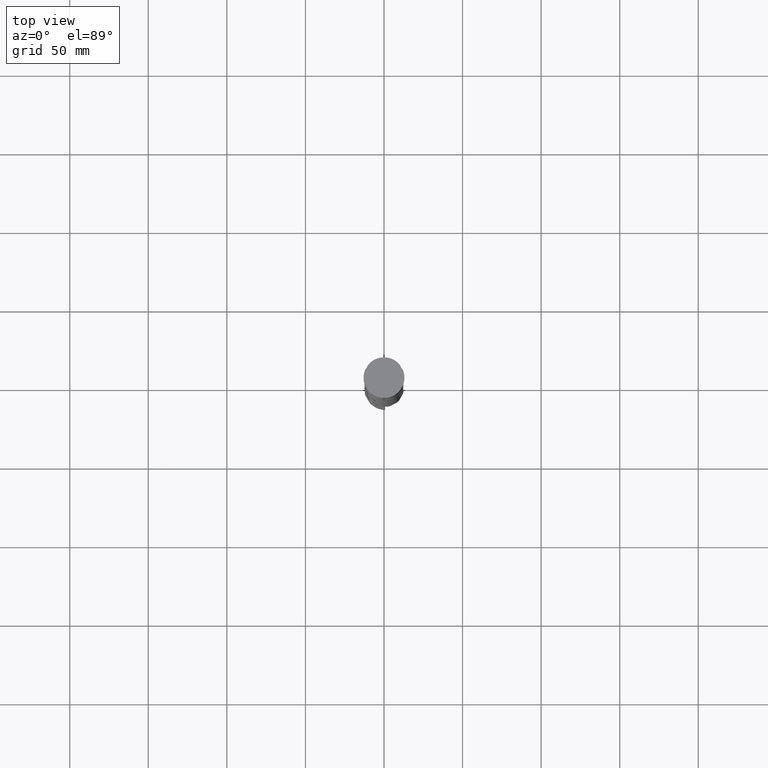
[diagram: clean part render]
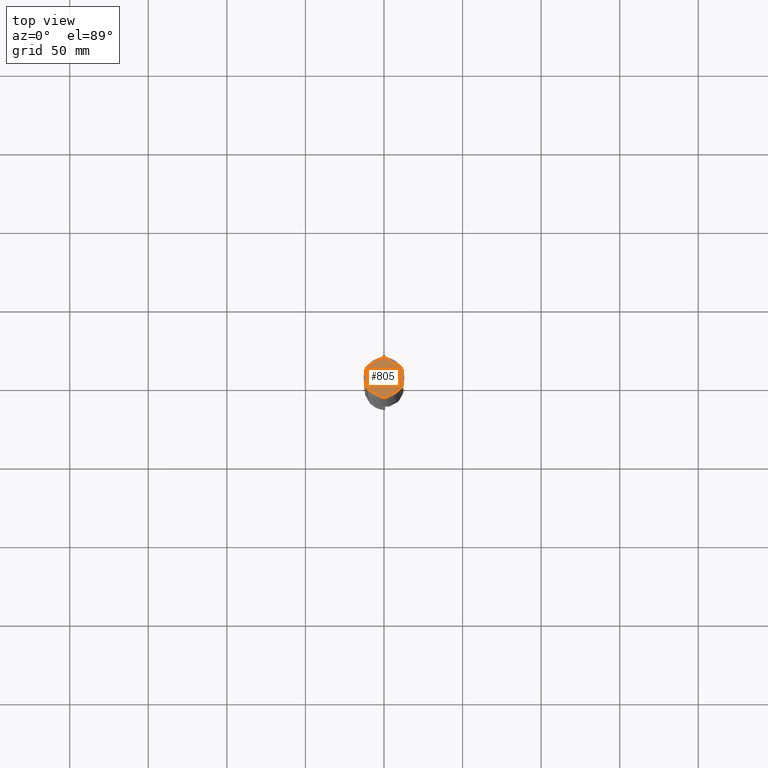
[diagram: same view with one face highlighted and labeled with its STEP entity id]
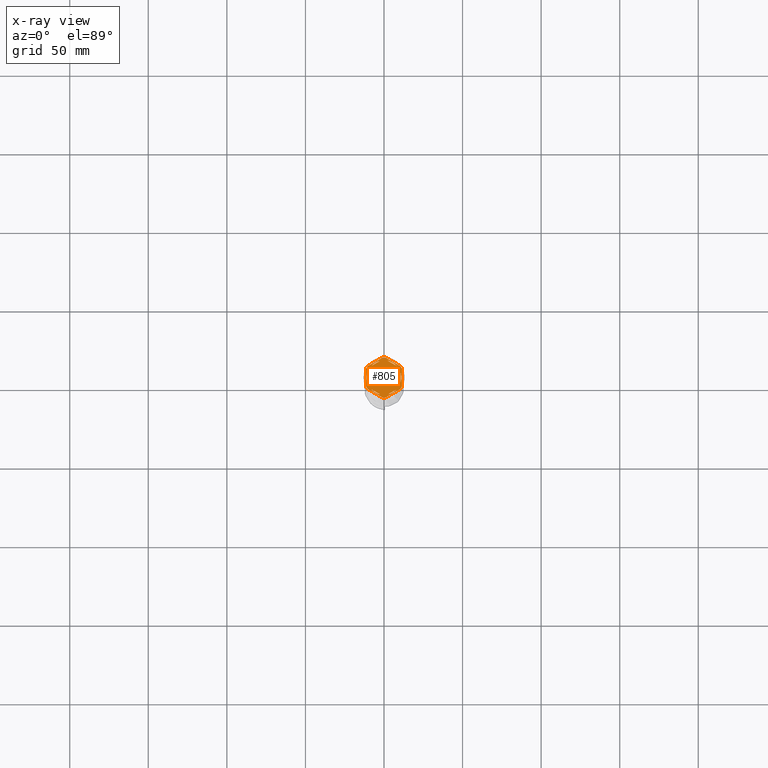
[diagram: x-ray of the same camera — body ghosted, the highlighted face saturated]
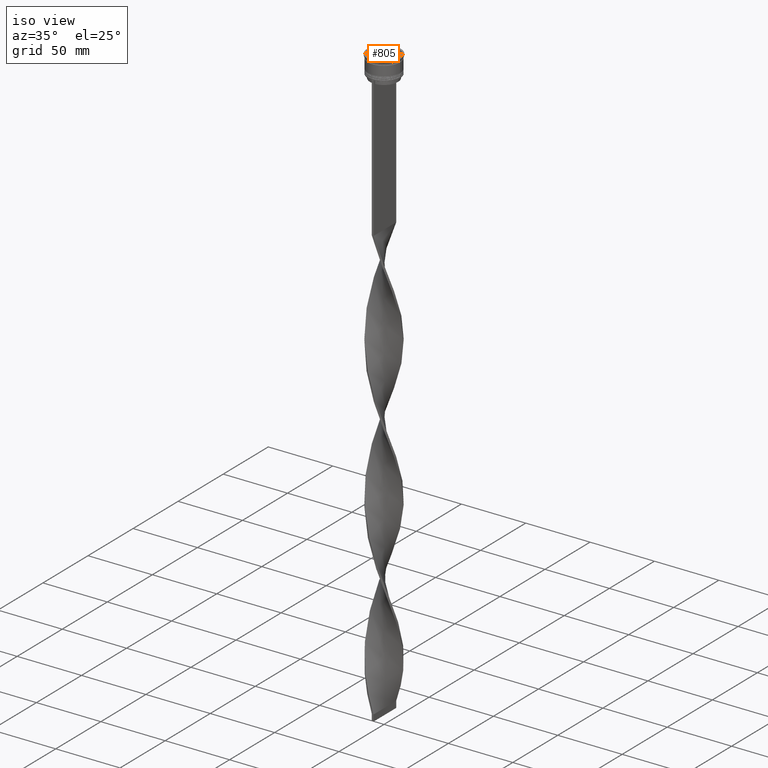
[diagram: same view with one face highlighted and labeled with its STEP entity id]
A machine part, top view. The second image highlights one B-rep face of the part: STEP entity #805.
The next image is the same camera in x-ray: the body ghosted, the highlighted face saturated — about 0% of this face is hidden behind the body in this view.
A second angle (iso view) of the same face is appended — the face is thin or edge-on in the first view.
In plain terms, the highlighted planar face has unit normal (0, 0, 1).
Its self-contained STEP definition (entity closure, byte-faithful):
#24 = EDGE_CURVE ( 'NONE', #4083, #1658, #3200, .T. ) ;
#26 = CARTESIAN_POINT ( 'NONE',  ( 0.000000000000000000, 0.000000000000000000, -1.000000000000000000 ) ) ;
#53 = CARTESIAN_POINT ( 'NONE',  ( -10.49999999999999822, 6.062177826491068622, -1.000000000000000888 ) ) ;
#54 = EDGE_CURVE ( 'NONE', #2521, #1767, #1988, .T. ) ;
#74 = ORIENTED_EDGE ( 'NONE', *, *, #3415, .F. ) ;
#78 = DIRECTION ( 'NONE',  ( 0.000000000000000000, 1.000000000000000000, 0.000000000000000000 ) ) ;
#88 = VERTEX_POINT ( 'NONE', #3792 ) ;
#120 = CARTESIAN_POINT ( 'NONE',  ( 8.089454172900138573, 7.453907108661105063, -1.000000000000000888 ) ) ;
#128 = CARTESIAN_POINT ( 'NONE',  ( 0.000000000000000000, 0.000000000000000000, -1.000000000000000000 ) ) ;
#172 = FACE_BOUND ( 'NONE', #1934, .T. ) ;
#197 = EDGE_CURVE ( 'NONE', #4226, #3407, #665, .T. ) ;
#239 = VECTOR ( 'NONE', #2642, 999.9999999999998863 ) ;
#267 = EDGE_CURVE ( 'NONE', #3195, #3350, #2463, .T. ) ;
#343 = CARTESIAN_POINT ( 'NONE',  ( 8.089454172900135021, -7.453907108661109504, -1.000000000000000888 ) ) ;
#366 = EDGE_CURVE ( 'NONE', #427, #4083, #755, .T. ) ;
#381 = VERTEX_POINT ( 'NONE', #3623 ) ;
#384 = AXIS2_PLACEMENT_3D ( 'NONE', #1116, #4031, #2297 ) ;
#386 = VERTEX_POINT ( 'NONE', #2085 ) ;
#427 = VERTEX_POINT ( 'NONE', #1514 ) ;
#481 = CARTESIAN_POINT ( 'NONE',  ( -2.602085213965210642E-15, -12.12435565298214080, -1.000000000000000888 ) ) ;
#547 = VERTEX_POINT ( 'NONE', #3430 ) ;
#611 = DIRECTION ( 'NONE',  ( -0.8660254037844385966, -0.5000000000000001110, 0.000000000000000000 ) ) ;
#632 = LINE ( 'NONE', #4181, #1423 ) ;
#645 = CARTESIAN_POINT ( 'NONE',  ( -10.41690475583121334, -7.264853426459548125, -1.000000000000000000 ) ) ;
#662 = ORIENTED_EDGE ( 'NONE', *, *, #2038, .F. ) ;
#665 = CIRCLE ( 'NONE', #1644, 12.69999999999999929 ) ;
#679 = CIRCLE ( 'NONE', #1732, 12.69999999999999929 ) ;
#691 = ORIENTED_EDGE ( 'NONE', *, *, #2238, .T. ) ;
#702 = DIRECTION ( 'NONE',  ( 1.000000000000000000, 0.000000000000000000, 0.000000000000000000 ) ) ;
#710 = EDGE_CURVE ( 'NONE', #88, #1713, #1956, .T. ) ;
#739 = CARTESIAN_POINT ( 'NONE',  ( 11.50000000000000000, 6.639528095680698350, -1.000000000000000000 ) ) ;
#745 = AXIS2_PLACEMENT_3D ( 'NONE', #3454, #3123, #1013 ) ;
#755 = LINE ( 'NONE', #53, #2096 ) ;
#767 = VERTEX_POINT ( 'NONE', #4398 ) ;
#789 = LINE ( 'NONE', #2873, #3531 ) ;
#805 = ADVANCED_FACE ( 'NONE', ( #3383, #172, #4117, #1931, #3739, #3355, #2333 ), #4231, .T. ) ;
#824 = VECTOR ( 'NONE', #2338, 1000.000000000000227 ) ;
#868 = DIRECTION ( 'NONE',  ( -0.000000000000000000, -0.000000000000000000, -1.000000000000000000 ) ) ;
#888 = CARTESIAN_POINT ( 'NONE',  ( 11.49999999999999822, 5.388877434122992582, -1.000000000000000000 ) ) ;
#949 = EDGE_CURVE ( 'NONE', #1767, #2521, #3370, .T. ) ;
#982 = CIRCLE ( 'NONE', #1503, 12.69999999999999929 ) ;
#989 = DIRECTION ( 'NONE',  ( 1.000000000000000000, 0.000000000000000000, 0.000000000000000000 ) ) ;
#993 = CARTESIAN_POINT ( 'NONE',  ( -11.00000000000000000, 0.000000000000000000, -1.000000000000000000 ) ) ;
#1013 = DIRECTION ( 'NONE',  ( 1.000000000000000000, 7.105427357601001859E-15, 0.000000000000000000 ) ) ;
#1041 = CARTESIAN_POINT ( 'NONE',  ( 11.49999999999999822, -6.639528095680694797, -1.000000000000000000 ) ) ;
#1056 = AXIS2_PLACEMENT_3D ( 'NONE', #3663, #1153, #4299 ) ;
#1095 = DIRECTION ( 'NONE',  ( -0.8660254037844388186, 0.4999999999999997224, 0.000000000000000000 ) ) ;
#1115 = EDGE_CURVE ( 'NONE', #1764, #3130, #2484, .T. ) ;
#1116 = CARTESIAN_POINT ( 'NONE',  ( 0.000000000000000000, 0.000000000000000000, -1.000000000000000000 ) ) ;
#1148 = VERTEX_POINT ( 'NONE', #343 ) ;
#1153 = DIRECTION ( 'NONE',  ( -0.000000000000000000, -0.000000000000000000, -1.000000000000000000 ) ) ;
#1160 = EDGE_LOOP ( 'NONE', ( #3590, #3335, #1455, #3557, #691, #2353, #3149, #1957, #1332, #2445, #4466, #3991 ) ) ;
#1174 = DIRECTION ( 'NONE',  ( 1.000000000000000000, 0.000000000000000000, 0.000000000000000000 ) ) ;
#1178 = ORIENTED_EDGE ( 'NONE', *, *, #3469, .F. ) ;
#1183 = DIRECTION ( 'NONE',  ( 0.000000000000000000, 0.000000000000000000, 1.000000000000000000 ) ) ;
#1251 = ORIENTED_EDGE ( 'NONE', *, *, #710, .F. ) ;
#1276 = CIRCLE ( 'NONE', #3901, 12.69999999999999929 ) ;
#1326 = ORIENTED_EDGE ( 'NONE', *, *, #1991, .F. ) ;
#1332 = ORIENTED_EDGE ( 'NONE', *, *, #1430, .T. ) ;
#1340 = VECTOR ( 'NONE', #3922, 1000.000000000000000 ) ;
#1423 = VECTOR ( 'NONE', #611, 1000.000000000000114 ) ;
#1429 = DIRECTION ( 'NONE',  ( 0.000000000000000000, 0.000000000000000000, 1.000000000000000000 ) ) ;
#1430 = EDGE_CURVE ( 'NONE', #4382, #547, #4496, .T. ) ;
#1455 = ORIENTED_EDGE ( 'NONE', *, *, #1115, .T. ) ;
#1503 = AXIS2_PLACEMENT_3D ( 'NONE', #2604, #868, #2308 ) ;
#1509 = CIRCLE ( 'NONE', #1056, 12.69999999999999929 ) ;
#1514 = CARTESIAN_POINT ( 'NONE',  ( -10.49999999999999822, -3.278719262151000624, -1.000000000000000888 ) ) ;
#1553 = LINE ( 'NONE', #3762, #3216 ) ;
#1565 = DIRECTION ( 'NONE',  ( 0.000000000000000000, 0.000000000000000000, 1.000000000000000000 ) ) ;
#1588 = DIRECTION ( 'NONE',  ( 0.000000000000000000, 0.000000000000000000, 1.000000000000000000 ) ) ;
#1612 = EDGE_CURVE ( 'NONE', #4382, #1847, #3829, .T. ) ;
#1644 = AXIS2_PLACEMENT_3D ( 'NONE', #128, #4078, #3412 ) ;
#1658 = VERTEX_POINT ( 'NONE', #993 ) ;
#1671 = CARTESIAN_POINT ( 'NONE',  ( 0.000000000000000000, 0.000000000000000000, -1.000000000000000000 ) ) ;
#1700 = LINE ( 'NONE', #1041, #3838 ) ;
#1713 = VERTEX_POINT ( 'NONE', #2158 ) ;
#1722 = VECTOR ( 'NONE', #1095, 1000.000000000000000 ) ;
#1732 = AXIS2_PLACEMENT_3D ( 'NONE', #3640, #3255, #702 ) ;
#1764 = VERTEX_POINT ( 'NONE', #3639 ) ;
#1767 = VERTEX_POINT ( 'NONE', #3967 ) ;
#1827 = EDGE_CURVE ( 'NONE', #1764, #3870, #1276, .T. ) ;
#1829 = DIRECTION ( 'NONE',  ( 1.000000000000000000, -1.776356839400250465E-14, 0.000000000000000000 ) ) ;
#1847 = VERTEX_POINT ( 'NONE', #3204 ) ;
#1854 = EDGE_CURVE ( 'NONE', #1658, #427, #3075, .T. ) ;
#1909 = VERTEX_POINT ( 'NONE', #3052 ) ;
#1914 = CARTESIAN_POINT ( 'NONE',  ( 10.41690475583121867, -7.264853426459537467, -1.000000000000000000 ) ) ;
#1920 = CARTESIAN_POINT ( 'NONE',  ( -8.089454172900135021, 7.453907108661106840, -1.000000000000000888 ) ) ;
#1931 = FACE_BOUND ( 'NONE', #4256, .T. ) ;
#1934 = EDGE_LOOP ( 'NONE', ( #662, #4143 ) ) ;
#1938 = DIRECTION ( 'NONE',  ( 0.8660254037844385966, 0.5000000000000001110, -0.000000000000000000 ) ) ;
#1939 = DIRECTION ( 'NONE',  ( 1.000000000000000000, 0.000000000000000000, 0.000000000000000000 ) ) ;
#1943 = DIRECTION ( 'NONE',  ( 1.000000000000000000, 0.000000000000000000, 0.000000000000000000 ) ) ;
#1956 = LINE ( 'NONE', #4071, #2619 ) ;
#1957 = ORIENTED_EDGE ( 'NONE', *, *, #1612, .F. ) ;
#1988 = LINE ( 'NONE', #4404, #2760 ) ;
#1991 = EDGE_CURVE ( 'NONE', #1909, #3201, #1553, .T. ) ;
#2038 = EDGE_CURVE ( 'NONE', #3350, #3195, #2842, .T. ) ;
#2049 = CARTESIAN_POINT ( 'NONE',  ( -11.50000000000000000, 6.639528095680691244, -1.000000000000000000 ) ) ;
#2050 = DIRECTION ( 'NONE',  ( 0.000000000000000000, 0.000000000000000000, 1.000000000000000000 ) ) ;
#2065 = EDGE_CURVE ( 'NONE', #2505, #3130, #982, .T. ) ;
#2069 = DIRECTION ( 'NONE',  ( 0.000000000000000000, -1.000000000000000000, 0.000000000000000000 ) ) ;
#2085 = CARTESIAN_POINT ( 'NONE',  ( -10.41690475583121689, 7.264853426459546348, -1.000000000000000000 ) ) ;
#2096 = VECTOR ( 'NONE', #78, 1000.000000000000000 ) ;
#2158 = CARTESIAN_POINT ( 'NONE',  ( -8.089454172900133244, -7.453907108661111280, -1.000000000000000888 ) ) ;
#2184 = DIRECTION ( 'NONE',  ( 1.000000000000000000, 0.000000000000000000, 0.000000000000000000 ) ) ;
#2238 = EDGE_CURVE ( 'NONE', #2505, #386, #632, .T. ) ;
#2269 = CARTESIAN_POINT ( 'NONE',  ( 0.000000000000000000, 0.000000000000000000, -1.000000000000000000 ) ) ;
#2271 = EDGE_CURVE ( 'NONE', #2378, #1847, #3493, .T. ) ;
#2285 = DIRECTION ( 'NONE',  ( 0.000000000000000000, 0.000000000000000000, 1.000000000000000000 ) ) ;
#2297 = DIRECTION ( 'NONE',  ( 1.000000000000000000, 0.000000000000000000, 0.000000000000000000 ) ) ;
#2308 = DIRECTION ( 'NONE',  ( 1.000000000000000000, 1.243449787580175325E-14, 0.000000000000000000 ) ) ;
#2333 = FACE_OUTER_BOUND ( 'NONE', #1160, .T. ) ;
#2338 = DIRECTION ( 'NONE',  ( 0.8660254037844387076, -0.4999999999999997780, 0.000000000000000000 ) ) ;
#2342 = DIRECTION ( 'NONE',  ( 1.000000000000000000, 0.000000000000000000, 0.000000000000000000 ) ) ;
#2353 = ORIENTED_EDGE ( 'NONE', *, *, #2781, .F. ) ;
#2378 = VERTEX_POINT ( 'NONE', #4640 ) ;
#2399 = EDGE_LOOP ( 'NONE', ( #3549, #4480 ) ) ;
#2445 = ORIENTED_EDGE ( 'NONE', *, *, #2835, .F. ) ;
#2463 = LINE ( 'NONE', #2487, #1340 ) ;
#2484 = LINE ( 'NONE', #739, #1722 ) ;
#2485 = AXIS2_PLACEMENT_3D ( 'NONE', #3986, #1565, #1943 ) ;
#2487 = CARTESIAN_POINT ( 'NONE',  ( 10.49999999999999289, -6.062177826491073063, -1.000000000000000888 ) ) ;
#2505 = VERTEX_POINT ( 'NONE', #2871 ) ;
#2521 = VERTEX_POINT ( 'NONE', #1920 ) ;
#2604 = CARTESIAN_POINT ( 'NONE',  ( 0.000000000000000000, 0.000000000000000000, -1.000000000000000000 ) ) ;
#2619 = VECTOR ( 'NONE', #2979, 1000.000000000000000 ) ;
#2642 = DIRECTION ( 'NONE',  ( -0.8660254037844387076, -0.4999999999999999445, 0.000000000000000000 ) ) ;
#2708 = AXIS2_PLACEMENT_3D ( 'NONE', #2269, #1588, #1939 ) ;
#2731 = DIRECTION ( 'NONE',  ( 1.306360520641008153E-16, 1.000000000000000000, 0.000000000000000000 ) ) ;
#2760 = VECTOR ( 'NONE', #1938, 1000.000000000000000 ) ;
#2781 = EDGE_CURVE ( 'NONE', #2378, #386, #1509, .T. ) ;
#2791 = EDGE_LOOP ( 'NONE', ( #3173, #3143, #4193 ) ) ;
#2805 = EDGE_LOOP ( 'NONE', ( #3855, #74 ) ) ;
#2835 = EDGE_CURVE ( 'NONE', #381, #547, #679, .T. ) ;
#2842 = CIRCLE ( 'NONE', #3526, 11.00000000000000000 ) ;
#2871 = CARTESIAN_POINT ( 'NONE',  ( -1.083095244168783333, 12.65373086058254160, -1.000000000000000000 ) ) ;
#2873 = CARTESIAN_POINT ( 'NONE',  ( 5.612359739892467248E-18, -13.27905619136138959, -1.000000000000000000 ) ) ;
#2913 = VECTOR ( 'NONE', #2069, 1000.000000000000000 ) ;
#2941 = EDGE_CURVE ( 'NONE', #4226, #3870, #1700, .T. ) ;
#2959 = CARTESIAN_POINT ( 'NONE',  ( -11.50000000000000000, -6.639528095680696573, -1.000000000000000000 ) ) ;
#2979 = DIRECTION ( 'NONE',  ( -0.8660254037844384856, 0.5000000000000002220, 0.000000000000000000 ) ) ;
#3052 = CARTESIAN_POINT ( 'NONE',  ( 2.410545827099861871, 10.73262637081210791, -1.000000000000000888 ) ) ;
#3075 = CIRCLE ( 'NONE', #4054, 11.00000000000000000 ) ;
#3090 = CARTESIAN_POINT ( 'NONE',  ( 11.49999999999999822, -5.388877434122996135, -1.000000000000000000 ) ) ;
#3123 = DIRECTION ( 'NONE',  ( -0.000000000000000000, -0.000000000000000000, -1.000000000000000000 ) ) ;
#3130 = VERTEX_POINT ( 'NONE', #3993 ) ;
#3143 = ORIENTED_EDGE ( 'NONE', *, *, #366, .F. ) ;
#3149 = ORIENTED_EDGE ( 'NONE', *, *, #2271, .T. ) ;
#3164 = ORIENTED_EDGE ( 'NONE', *, *, #4106, .F. ) ;
#3173 = ORIENTED_EDGE ( 'NONE', *, *, #24, .F. ) ;
#3195 = VERTEX_POINT ( 'NONE', #4068 ) ;
#3200 = CIRCLE ( 'NONE', #3580, 11.00000000000000000 ) ;
#3201 = VERTEX_POINT ( 'NONE', #120 ) ;
#3204 = CARTESIAN_POINT ( 'NONE',  ( -11.50000000000000000, -5.388877434122992582, -1.000000000000000000 ) ) ;
#3216 = VECTOR ( 'NONE', #4491, 999.9999999999998863 ) ;
#3255 = DIRECTION ( 'NONE',  ( -0.000000000000000000, -0.000000000000000000, -1.000000000000000000 ) ) ;
#3316 = LINE ( 'NONE', #481, #239 ) ;
#3335 = ORIENTED_EDGE ( 'NONE', *, *, #1827, .F. ) ;
#3350 = VERTEX_POINT ( 'NONE', #4500 ) ;
#3355 = FACE_BOUND ( 'NONE', #2399, .T. ) ;
#3370 = CIRCLE ( 'NONE', #4344, 11.00000000000000000 ) ;
#3383 = FACE_BOUND ( 'NONE', #3498, .T. ) ;
#3391 = CIRCLE ( 'NONE', #2485, 11.00000000000000000 ) ;
#3407 = VERTEX_POINT ( 'NONE', #1914 ) ;
#3412 = DIRECTION ( 'NONE',  ( 1.000000000000000000, 0.000000000000000000, 0.000000000000000000 ) ) ;
#3415 = EDGE_CURVE ( 'NONE', #1148, #767, #3316, .T. ) ;
#3426 = DIRECTION ( 'NONE',  ( 0.000000000000000000, 0.000000000000000000, 1.000000000000000000 ) ) ;
#3430 = CARTESIAN_POINT ( 'NONE',  ( -1.083095244168779780, -12.65373086058253982, -1.000000000000000000 ) ) ;
#3454 = CARTESIAN_POINT ( 'NONE',  ( 0.000000000000000000, 0.000000000000000000, -1.000000000000000000 ) ) ;
#3469 = EDGE_CURVE ( 'NONE', #3201, #1909, #3770, .T. ) ;
#3493 = LINE ( 'NONE', #2049, #2913 ) ;
#3498 = EDGE_LOOP ( 'NONE', ( #1178, #1326 ) ) ;
#3526 = AXIS2_PLACEMENT_3D ( 'NONE', #3716, #2285, #1174 ) ;
#3531 = VECTOR ( 'NONE', #3989, 1000.000000000000114 ) ;
#3549 = ORIENTED_EDGE ( 'NONE', *, *, #949, .F. ) ;
#3557 = ORIENTED_EDGE ( 'NONE', *, *, #2065, .F. ) ;
#3580 = AXIS2_PLACEMENT_3D ( 'NONE', #4052, #1183, #2342 ) ;
#3590 = ORIENTED_EDGE ( 'NONE', *, *, #2941, .T. ) ;
#3623 = CARTESIAN_POINT ( 'NONE',  ( 1.083095244168774673, -12.65373086058253982, -1.000000000000000000 ) ) ;
#3629 = CARTESIAN_POINT ( 'NONE',  ( -10.49999999999999822, 3.278719262151000624, -1.000000000000000888 ) ) ;
#3639 = CARTESIAN_POINT ( 'NONE',  ( 10.41690475583121156, 7.264853426459550789, -1.000000000000000000 ) ) ;
#3640 = CARTESIAN_POINT ( 'NONE',  ( 0.000000000000000000, 0.000000000000000000, -1.000000000000000000 ) ) ;
#3663 = CARTESIAN_POINT ( 'NONE',  ( 0.000000000000000000, 0.000000000000000000, -1.000000000000000000 ) ) ;
#3716 = CARTESIAN_POINT ( 'NONE',  ( 0.000000000000000000, 0.000000000000000000, -1.000000000000000000 ) ) ;
#3739 = FACE_BOUND ( 'NONE', #2791, .T. ) ;
#3762 = CARTESIAN_POINT ( 'NONE',  ( 10.49999999999999467, 6.062177826491072175, -1.000000000000000888 ) ) ;
#3770 = CIRCLE ( 'NONE', #2708, 11.00000000000000000 ) ;
#3785 = CARTESIAN_POINT ( 'NONE',  ( 0.000000000000000000, 0.000000000000000000, -1.000000000000000000 ) ) ;
#3792 = CARTESIAN_POINT ( 'NONE',  ( -2.410545827099876082, -10.73262637081210435, -1.000000000000000888 ) ) ;
#3829 = CIRCLE ( 'NONE', #745, 12.69999999999999929 ) ;
#3838 = VECTOR ( 'NONE', #2731, 1000.000000000000000 ) ;
#3842 = CIRCLE ( 'NONE', #384, 11.00000000000000000 ) ;
#3855 = ORIENTED_EDGE ( 'NONE', *, *, #4045, .F. ) ;
#3870 = VERTEX_POINT ( 'NONE', #888 ) ;
#3901 = AXIS2_PLACEMENT_3D ( 'NONE', #26, #4275, #1829 ) ;
#3922 = DIRECTION ( 'NONE',  ( -1.430775808321104180E-16, -1.000000000000000000, 0.000000000000000000 ) ) ;
#3967 = CARTESIAN_POINT ( 'NONE',  ( -2.410545827099867200, 10.73262637081210613, -1.000000000000000888 ) ) ;
#3986 = CARTESIAN_POINT ( 'NONE',  ( 0.000000000000000000, 0.000000000000000000, -1.000000000000000000 ) ) ;
#3989 = DIRECTION ( 'NONE',  ( 0.8660254037844385966, 0.4999999999999999445, 0.000000000000000000 ) ) ;
#3991 = ORIENTED_EDGE ( 'NONE', *, *, #197, .F. ) ;
#3993 = CARTESIAN_POINT ( 'NONE',  ( 1.083095244168781557, 12.65373086058254160, -1.000000000000000000 ) ) ;
#4031 = DIRECTION ( 'NONE',  ( 0.000000000000000000, 0.000000000000000000, 1.000000000000000000 ) ) ;
#4045 = EDGE_CURVE ( 'NONE', #767, #1148, #3842, .T. ) ;
#4052 = CARTESIAN_POINT ( 'NONE',  ( 0.000000000000000000, 0.000000000000000000, -1.000000000000000000 ) ) ;
#4054 = AXIS2_PLACEMENT_3D ( 'NONE', #4648, #1429, #2184 ) ;
#4068 = CARTESIAN_POINT ( 'NONE',  ( 10.49999999999999467, 3.278719262151012170, -1.000000000000000888 ) ) ;
#4071 = CARTESIAN_POINT ( 'NONE',  ( -10.49999999999999822, -6.062177826491068622, -1.000000000000000888 ) ) ;
#4078 = DIRECTION ( 'NONE',  ( -0.000000000000000000, -0.000000000000000000, -1.000000000000000000 ) ) ;
#4083 = VERTEX_POINT ( 'NONE', #3629 ) ;
#4106 = EDGE_CURVE ( 'NONE', #1713, #88, #3391, .T. ) ;
#4117 = FACE_BOUND ( 'NONE', #2805, .T. ) ;
#4143 = ORIENTED_EDGE ( 'NONE', *, *, #267, .F. ) ;
#4181 = CARTESIAN_POINT ( 'NONE',  ( 0.000000000000000000, 13.27905619136138959, -1.000000000000000000 ) ) ;
#4193 = ORIENTED_EDGE ( 'NONE', *, *, #1854, .F. ) ;
#4226 = VERTEX_POINT ( 'NONE', #3090 ) ;
#4231 = PLANE ( 'NONE',  #4571 ) ;
#4256 = EDGE_LOOP ( 'NONE', ( #3164, #1251 ) ) ;
#4275 = DIRECTION ( 'NONE',  ( -0.000000000000000000, -0.000000000000000000, -1.000000000000000000 ) ) ;
#4299 = DIRECTION ( 'NONE',  ( 1.000000000000000000, 0.000000000000000000, 0.000000000000000000 ) ) ;
#4344 = AXIS2_PLACEMENT_3D ( 'NONE', #3785, #2050, #989 ) ;
#4382 = VERTEX_POINT ( 'NONE', #645 ) ;
#4398 = CARTESIAN_POINT ( 'NONE',  ( 2.410545827099865868, -10.73262637081210791, -1.000000000000000888 ) ) ;
#4404 = CARTESIAN_POINT ( 'NONE',  ( -1.734723475976807094E-15, 12.12435565298214080, -1.000000000000000888 ) ) ;
#4466 = ORIENTED_EDGE ( 'NONE', *, *, #4565, .T. ) ;
#4480 = ORIENTED_EDGE ( 'NONE', *, *, #54, .F. ) ;
#4491 = DIRECTION ( 'NONE',  ( 0.8660254037844387076, -0.4999999999999999445, 0.000000000000000000 ) ) ;
#4496 = LINE ( 'NONE', #2959, #824 ) ;
#4500 = CARTESIAN_POINT ( 'NONE',  ( 10.49999999999999467, -3.278719262151014835, -1.000000000000000888 ) ) ;
#4565 = EDGE_CURVE ( 'NONE', #381, #3407, #789, .T. ) ;
#4571 = AXIS2_PLACEMENT_3D ( 'NONE', #1671, #3426, #4604 ) ;
#4604 = DIRECTION ( 'NONE',  ( 1.000000000000000000, 0.000000000000000000, -0.000000000000000000 ) ) ;
#4640 = CARTESIAN_POINT ( 'NONE',  ( -11.50000000000000000, 5.388877434122992582, -1.000000000000000000 ) ) ;
#4648 = CARTESIAN_POINT ( 'NONE',  ( 0.000000000000000000, 0.000000000000000000, -1.000000000000000000 ) ) ;